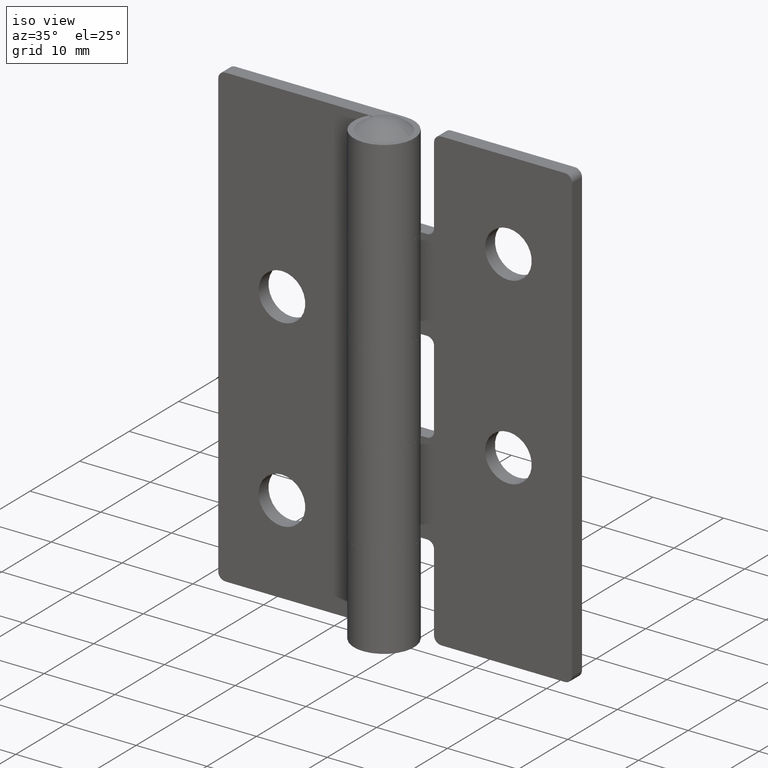
[diagram: clean part render]
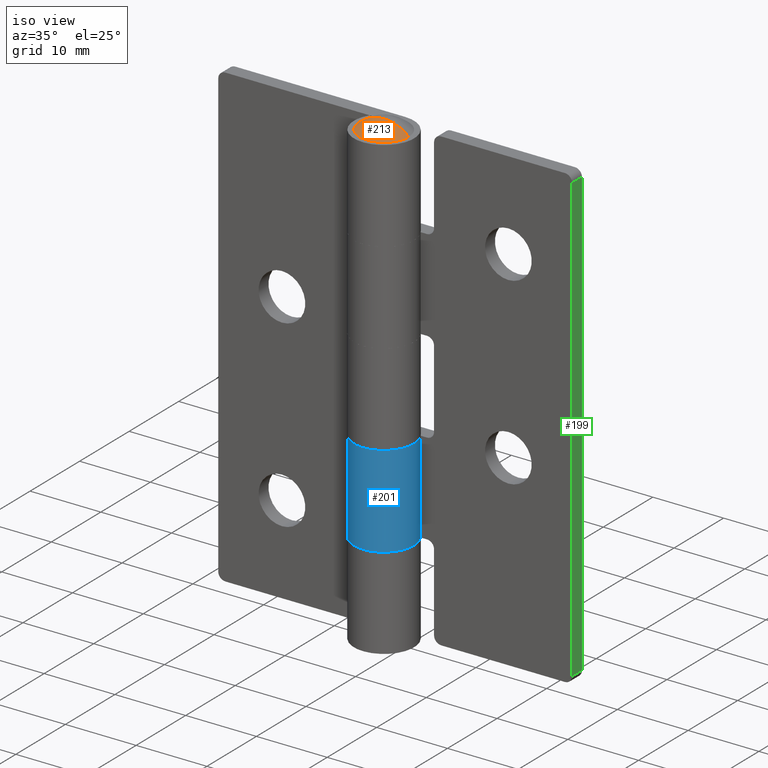
[diagram: same view with three faces highlighted in distinct colors, each labeled with its STEP entity id]
A machine part, iso view with three faces highlighted in distinct colors.
Their STEP definitions:

[orange] entity #213 — the highlighted spherical surface has radius 5.075 mm.
#213=ADVANCED_FACE('',(#868),#867,.T.);
#867=SPHERICAL_SURFACE('',#1240,5.07500000000E+00);
#868=FACE_OUTER_BOUND('',#1241,.T.);
#1237=CARTESIAN_POINT('',(2.27373675443E-13,0.00000000000E+00,6.27250000000E+01));
#1238=DIRECTION('',(-0.00000000000E+00,-0.00000000000E+00,-1.00000000000E+00));
#1239=DIRECTION('',(1.00000000000E+00,-1.22460635382E-16,0.00000000000E+00));
#1240=AXIS2_PLACEMENT_3D('',#1237,#1238,#1239);
#1241=EDGE_LOOP('',(#1617,#1618,#1619));
#1617=ORIENTED_EDGE('',*,*,#1806,.F.);
#1618=ORIENTED_EDGE('',*,*,#1811,.F.);
#1619=ORIENTED_EDGE('',*,*,#1812,.T.);
#1806=EDGE_CURVE('',#2992,#2991,#2999,.T.);
#1811=EDGE_CURVE('',#3031,#2992,#3032,.T.);
#1812=EDGE_CURVE('',#3031,#2991,#3038,.T.);
#2991=VERTEX_POINT('',#3769);
#2992=VERTEX_POINT('',#3770);
#2999=CIRCLE('',#3778,3.50000000000E+00);
#3031=VERTEX_POINT('',#3793);
#3032=(BOUNDED_CURVE() B_SPLINE_CURVE(2,(#3794,#3795,#3796),.UNSPECIFIED.,.F.,.F.) B_SPLINE_CURVE_WITH_KNOTS((3,3),(0.00000000000E+00,1.00000000000E+00),.UNSPECIFIED.) CURVE() GEOMETRIC_REPRESENTATION_ITEM() RATIONAL_B_SPLINE_CURVE((1.00000000000E+00,9.28476690885E-01,1.00000000000E+00)) REPRESENTATION_ITEM('') );
#3038=(BOUNDED_CURVE() B_SPLINE_CURVE(2,(#3797,#3798,#3799),.UNSPECIFIED.,.F.,.F.) B_SPLINE_CURVE_WITH_KNOTS((3,3),(0.00000000000E+00,1.00000000000E+00),.UNSPECIFIED.) CURVE() GEOMETRIC_REPRESENTATION_ITEM() RATIONAL_B_SPLINE_CURVE((7.50000000000E-01,6.96357518164E-01,7.50000000000E-01)) REPRESENTATION_ITEM('') );
#3769=CARTESIAN_POINT('',(-3.50000000000E+00,0.00000000000E+00,6.64000000000E+01));
#3770=CARTESIAN_POINT('',(3.50000000000E+00,1.48029736617E-16,6.64000000000E+01));
#3775=CARTESIAN_POINT('',(0.00000000000E+00,0.00000000000E+00,6.64000000000E+01));
#3776=DIRECTION('',(-0.00000000000E+00,0.00000000000E+00,-1.00000000000E+00));
#3777=DIRECTION('',(-1.00000000000E+00,-1.22460635382E-16,0.00000000000E+00));
#3778=AXIS2_PLACEMENT_3D('',#3775,#3776,#3777);
#3793=CARTESIAN_POINT('',(2.27684419306E-13,-3.80538908162E-32,6.78000000000E+01));
#3794=CARTESIAN_POINT('',(2.27684419306E-13,-3.80538908162E-32,6.78000000000E+01));
#3795=CARTESIAN_POINT('',(2.03000000000E+00,-2.48595089826E-16,6.78000000000E+01));
#3796=CARTESIAN_POINT('',(3.50000000000E+00,-4.28612223838E-16,6.64000000000E+01));
#3797=CARTESIAN_POINT('',(2.27062931581E-13,1.64346021921E-32,6.78000000000E+01));
#3798=CARTESIAN_POINT('',(-2.03000000000E+00,3.98582264019E-16,6.78000000000E+01));
#3799=CARTESIAN_POINT('',(-3.50000000000E+00,4.44089209850E-16,6.64000000000E+01));

[blue] entity #201 — the highlighted cylindrical surface (partial cylindrical patch) has radius 4.25 mm, axis along (0, 0, 1).
#201=ADVANCED_FACE('',(#746),#745,.T.);
#745=CYLINDRICAL_SURFACE('',#1178,4.25000000000E+00);
#746=FACE_OUTER_BOUND('',#1179,.T.);
#1175=CARTESIAN_POINT('',(0.00000000000E+00,-4.25000000000E+00,1.00000000000E+03));
#1176=DIRECTION('',(0.00000000000E+00,-0.00000000000E+00,1.00000000000E+00));
#1177=DIRECTION('',(4.92423560103E-01,8.70355695940E-01,0.00000000000E+00));
#1178=AXIS2_PLACEMENT_3D('',#1175,#1176,#1177);
#1179=EDGE_LOOP('',(#1565,#1566,#1567,#1568));
#1565=ORIENTED_EDGE('',*,*,#1770,.F.);
#1566=ORIENTED_EDGE('',*,*,#1787,.T.);
#1567=ORIENTED_EDGE('',*,*,#1794,.F.);
#1568=ORIENTED_EDGE('',*,*,#1735,.F.);
#1735=EDGE_CURVE('',#2521,#2528,#2529,.T.);
#1770=EDGE_CURVE('',#2756,#2521,#2763,.T.);
#1787=EDGE_CURVE('',#2756,#2866,#2873,.T.);
#1794=EDGE_CURVE('',#2528,#2866,#2921,.T.);
#2521=VERTEX_POINT('',#3486);
#2528=VERTEX_POINT('',#3490);
#2529=LINE('',#3491,#3492);
#2756=VERTEX_POINT('',#3630);
#2763=CIRCLE('',#3637,4.25000000000E+00);
#2866=VERTEX_POINT('',#3694);
#2873=LINE('',#3698,#3699);
#2921=CIRCLE('',#3734,4.25000000000E+00);
#3486=CARTESIAN_POINT('',(3.61795522360E+00,-2.02000000000E+00,2.60000000000E+01));
#3490=CARTESIAN_POINT('',(3.61795522360E+00,-2.02000000000E+00,1.30000000000E+01));
#3491=CARTESIAN_POINT('',(3.61795522360E+00,-2.02000000000E+00,2.60000000000E+01));
#3492=VECTOR('',#3493,1.30000000000E+01);
#3493=DIRECTION('',(0.00000000000E+00,0.00000000000E+00,-1.00000000000E+00));
#3630=CARTESIAN_POINT('',(-2.22529490494E-07,0.00000000000E+00,2.60000000000E+01));
#3634=CARTESIAN_POINT('',(0.00000000000E+00,-4.25000000000E+00,2.60000000000E+01));
#3635=DIRECTION('',(9.63735264432E-15,1.57772181044E-30,1.00000000000E+00));
#3636=DIRECTION('',(8.51283582024E-01,5.24705882353E-01,-8.20412008029E-15));
#3637=AXIS2_PLACEMENT_3D('',#3634,#3635,#3636);
#3694=CARTESIAN_POINT('',(-2.22529490494E-07,0.00000000000E+00,1.30000000000E+01));
#3698=CARTESIAN_POINT('',(-2.22529490727E-07,9.41469124882E-14,2.60000000000E+01));
#3699=VECTOR('',#3700,1.30000000000E+01);
#3700=DIRECTION('',(0.00000000000E+00,0.00000000000E+00,-1.00000000000E+00));
#3731=CARTESIAN_POINT('',(0.00000000000E+00,-4.25000000000E+00,1.30000000000E+01));
#3732=DIRECTION('',(-0.00000000000E+00,0.00000000000E+00,-1.00000000000E+00));
#3733=DIRECTION('',(-5.23598798036E-08,1.00000000000E+00,0.00000000000E+00));
#3734=AXIS2_PLACEMENT_3D('',#3731,#3732,#3733);

[green] entity #199 — the highlighted planar face has unit normal (1, 0, 0).
#199=ADVANCED_FACE('',(#724),#723,.T.);
#723=PLANE('',#1166);
#724=FACE_OUTER_BOUND('',#1167,.T.);
#1163=CARTESIAN_POINT('',(2.50000000000E+01,-2.20000000000E+00,7.03000000000E+01));
#1164=DIRECTION('',(1.00000000000E+00,0.00000000000E+00,-0.00000000000E+00));
#1165=DIRECTION('',(-0.00000000000E+00,0.00000000000E+00,-1.00000000000E+00));
#1166=AXIS2_PLACEMENT_3D('',#1163,#1164,#1165);
#1167=EDGE_LOOP('',(#1535,#1536,#1537,#1538));
#1535=ORIENTED_EDGE('',*,*,#1741,.T.);
#1536=ORIENTED_EDGE('',*,*,#1767,.T.);
#1537=ORIENTED_EDGE('',*,*,#1783,.F.);
#1538=ORIENTED_EDGE('',*,*,#1722,.T.);
#1722=EDGE_CURVE('',#2418,#2432,#2439,.T.);
#1741=EDGE_CURVE('',#2432,#2563,#2570,.T.);
#1767=EDGE_CURVE('',#2563,#2736,#2743,.T.);
#1783=EDGE_CURVE('',#2418,#2736,#2846,.T.);
#2418=VERTEX_POINT('',#3422);
#2432=VERTEX_POINT('',#3431);
#2439=LINE('',#3436,#3437);
#2563=VERTEX_POINT('',#3511);
#2570=LINE('',#3516,#3517);
#2736=VERTEX_POINT('',#3618);
#2743=LINE('',#3623,#3624);
#2846=LINE('',#3682,#3683);
#3422=CARTESIAN_POINT('',(2.50000000000E+01,0.00000000000E+00,6.40000000000E+01));
#3431=CARTESIAN_POINT('',(2.50000000000E+01,-2.00000000000E+00,6.40000000000E+01));
#3436=CARTESIAN_POINT('',(2.50000000000E+01,0.00000000000E+00,6.40000000000E+01));
#3437=VECTOR('',#3438,2.00000000000E+00);
#3438=DIRECTION('',(0.00000000000E+00,-1.00000000000E+00,0.00000000000E+00));
#3511=CARTESIAN_POINT('',(2.50000000000E+01,-2.00000000000E+00,1.00000000000E+00));
#3516=CARTESIAN_POINT('',(2.50000000000E+01,-2.00000000000E+00,6.40000000000E+01));
#3517=VECTOR('',#3518,6.30000000000E+01);
#3518=DIRECTION('',(0.00000000000E+00,0.00000000000E+00,-1.00000000000E+00));
#3618=CARTESIAN_POINT('',(2.50000000000E+01,0.00000000000E+00,1.00000000000E+00));
#3623=CARTESIAN_POINT('',(2.50000000000E+01,-2.00000000000E+00,1.00000000000E+00));
#3624=VECTOR('',#3625,2.00000000000E+00);
#3625=DIRECTION('',(0.00000000000E+00,1.00000000000E+00,0.00000000000E+00));
#3682=CARTESIAN_POINT('',(2.50000000000E+01,0.00000000000E+00,6.40000000000E+01));
#3683=VECTOR('',#3684,6.30000000000E+01);
#3684=DIRECTION('',(0.00000000000E+00,0.00000000000E+00,-1.00000000000E+00));